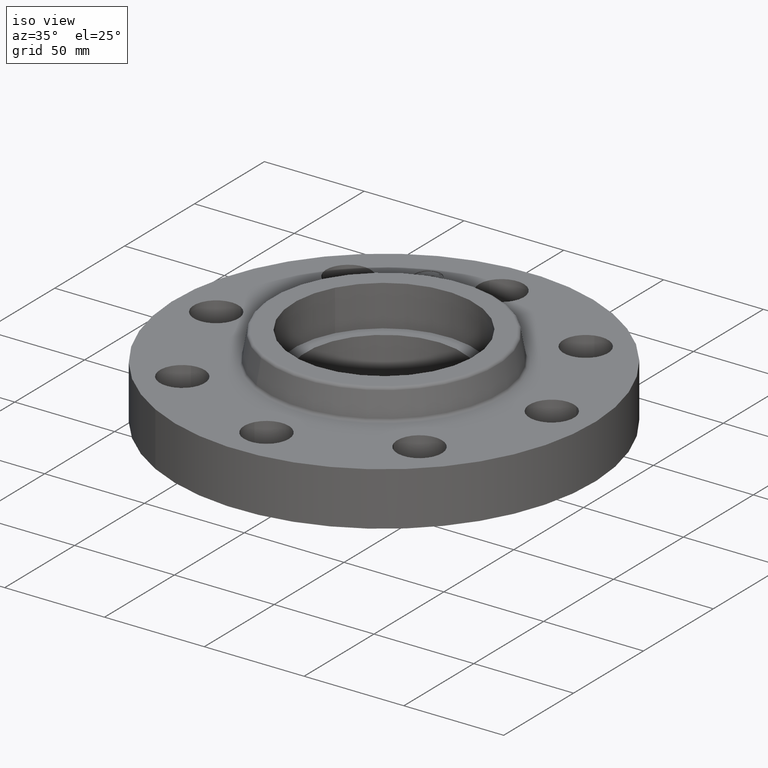
[diagram: clean part render]
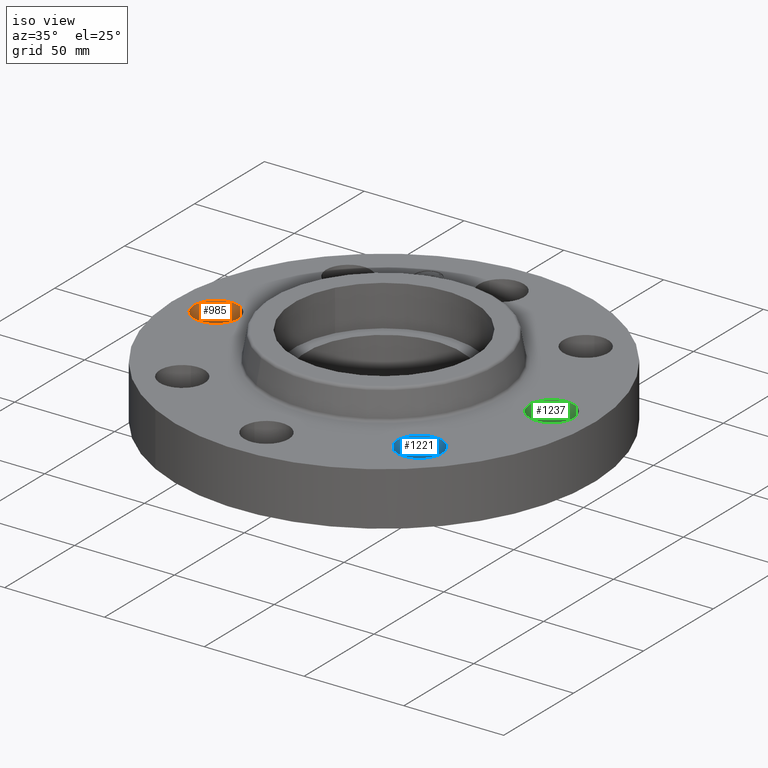
[diagram: same view with three faces highlighted in distinct colors, each labeled with its STEP entity id]
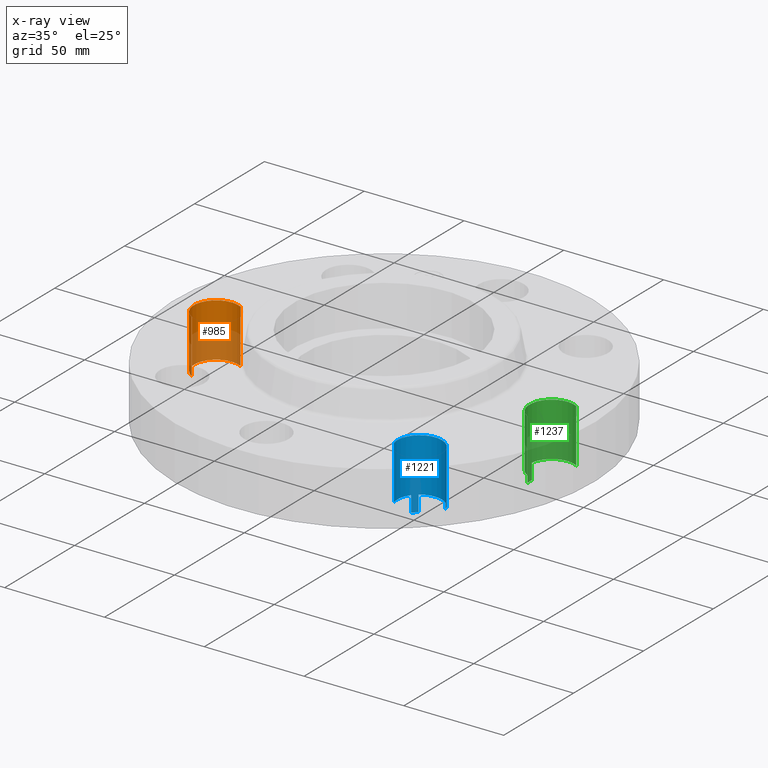
[diagram: x-ray of the same camera — body ghosted, the three highlighted faces saturated]
A machine part, iso view with three faces highlighted in distinct colors.
The next image is the same camera in x-ray (body ghosted, the three faces saturated) — at least one of them is partly hidden behind the body in this view.
Their STEP definitions:

[orange] entity #985 — the highlighted cylindrical surface (edge-blend (fillet) strip) has radius 11.176 mm, axis along (0, 0, -1).
#715=AXIS2_PLACEMENT_3D('Circle Axis2P3D',#713,#714,$) ;
#958=AXIS2_PLACEMENT_3D('Cylinder Axis2P3D',#955,#956,#957) ;
#976=AXIS2_PLACEMENT_3D('Circle Axis2P3D',#974,#975,$) ;
#710=CARTESIAN_POINT('Vertex',(-3.09905276303,0.386136327233,-1.39870617276E-016)) ;
#713=CARTESIAN_POINT('Axis2P3D Location',(-3.31000000001,-5.59482469102E-016,0.)) ;
#717=CARTESIAN_POINT('Vertex',(-3.520947237,-0.386136327233,0.)) ;
#955=CARTESIAN_POINT('Axis2P3D Location',(-3.31000000001,-6.08037135779E-016,1.05606299213)) ;
#960=CARTESIAN_POINT('Line Origine',(-3.520947237,-0.386136327233,0.373500000001)) ;
#964=CARTESIAN_POINT('Vertex',(-3.520947237,-0.386136327233,1.06)) ;
#967=CARTESIAN_POINT('Line Origine',(-3.09905276303,0.386136327233,0.373500000001)) ;
#971=CARTESIAN_POINT('Vertex',(-3.09905276303,0.386136327233,1.06)) ;
#974=CARTESIAN_POINT('Axis2P3D Location',(-3.31000000001,-6.08037135779E-016,1.06)) ;
#714=DIRECTION('Axis2P3D Direction',(0.,0.,-0.0393700787402)) ;
#956=DIRECTION('Axis2P3D Direction',(0.,0.,-0.0393700787402)) ;
#957=DIRECTION('Axis2P3D XDirection',(0.0188750212049,0.0345504945626,0.)) ;
#961=DIRECTION('Vector Direction',(0.,0.,-0.0393700787402)) ;
#968=DIRECTION('Vector Direction',(0.,0.,-0.0393700787402)) ;
#975=DIRECTION('Axis2P3D Direction',(0.,0.,-0.0393700787402)) ;
#962=VECTOR('Line Direction',#961,0.0393700787402) ;
#969=VECTOR('Line Direction',#968,0.0393700787402) ;
#980=ORIENTED_EDGE('',*,*,#966,.F.) ;
#981=ORIENTED_EDGE('',*,*,#719,.T.) ;
#982=ORIENTED_EDGE('',*,*,#973,.T.) ;
#983=ORIENTED_EDGE('',*,*,#978,.F.) ;
#985=ADVANCED_FACE('PartBody',(#984),#959,.F.) ;
#716=CIRCLE('generated circle',#715,0.440000000002) ;
#977=CIRCLE('generated circle',#976,0.440000000002) ;
#959=CYLINDRICAL_SURFACE('generated cylinder',#958,0.440000000002) ;
#719=EDGE_CURVE('',#718,#711,#716,.T.) ;
#966=EDGE_CURVE('',#718,#965,#963,.F.) ;
#973=EDGE_CURVE('',#711,#972,#970,.F.) ;
#978=EDGE_CURVE('',#965,#972,#977,.T.) ;
#979=EDGE_LOOP('',(#980,#981,#982,#983)) ;
#984=FACE_OUTER_BOUND('',#979,.T.) ;
#963=LINE('Line',#960,#962) ;
#970=LINE('Line',#967,#969) ;
#711=VERTEX_POINT('',#710) ;
#718=VERTEX_POINT('',#717) ;
#965=VERTEX_POINT('',#964) ;
#972=VERTEX_POINT('',#971) ;

[blue] entity #1221 — the highlighted cylindrical surface (edge-blend (fillet) strip) has radius 11.176 mm, axis along (-0, 0, -1).
#216=AXIS2_PLACEMENT_3D('Circle Axis2P3D',#214,#215,$) ;
#765=AXIS2_PLACEMENT_3D('Circle Axis2P3D',#763,#764,$) ;
#779=AXIS2_PLACEMENT_3D('Circle Axis2P3D',#777,#778,$) ;
#865=AXIS2_PLACEMENT_3D('Cylinder Axis2P3D',#862,#863,#864) ;
#1208=AXIS2_PLACEMENT_3D('Circle Axis2P3D',#1206,#1207,$) ;
#211=CARTESIAN_POINT('Vertex',(2.07605138692,-1.98887798493,-0.313000000001)) ;
#214=CARTESIAN_POINT('Axis2P3D Location',(2.34052344574,-2.34052344574,-0.313000000001)) ;
#218=CARTESIAN_POINT('Vertex',(1.98887798493,-2.07605138692,-0.313000000001)) ;
#387=CARTESIAN_POINT('Line Origine',(2.07605138692,-1.98887798493,-0.156500000001)) ;
#391=CARTESIAN_POINT('Vertex',(2.07605138692,-1.98887798493,2.79741234551E-016)) ;
#413=CARTESIAN_POINT('Line Origine',(1.98887798493,-2.07605138692,-0.156500000001)) ;
#417=CARTESIAN_POINT('Vertex',(1.98887798493,-2.07605138692,2.79741234551E-016)) ;
#763=CARTESIAN_POINT('Axis2P3D Location',(2.34052344574,-2.34052344574,0.)) ;
#767=CARTESIAN_POINT('Vertex',(1.91832160854,-2.46440083944,-1.39870617276E-016)) ;
#774=CARTESIAN_POINT('Vertex',(2.76272528293,-2.21664605203,0.)) ;
#777=CARTESIAN_POINT('Axis2P3D Location',(2.34052344574,-2.34052344574,0.)) ;
#862=CARTESIAN_POINT('Axis2P3D Location',(2.34052344574,-2.34052344574,1.05606299213)) ;
#867=CARTESIAN_POINT('Line Origine',(2.76272528293,-2.21664605203,0.373500000001)) ;
#871=CARTESIAN_POINT('Vertex',(2.76272528293,-2.21664605203,1.06)) ;
#874=CARTESIAN_POINT('Line Origine',(1.91832160854,-2.46440083944,0.373500000001)) ;
#878=CARTESIAN_POINT('Vertex',(1.91832160854,-2.46440083944,1.06)) ;
#1206=CARTESIAN_POINT('Axis2P3D Location',(2.34052344574,-2.34052344574,1.06)) ;
#215=DIRECTION('Axis2P3D Direction',(0.,0.,-0.0393700787402)) ;
#388=DIRECTION('Vector Direction',(0.,0.,-0.0393700787402)) ;
#414=DIRECTION('Vector Direction',(0.,0.,-0.0393700787402)) ;
#764=DIRECTION('Axis2P3D Direction',(0.,0.,-0.0393700787402)) ;
#778=DIRECTION('Axis2P3D Direction',(0.,0.,-0.0393700787402)) ;
#863=DIRECTION('Axis2P3D Direction',(-0.,0.,-0.0393700787402)) ;
#864=DIRECTION('Axis2P3D XDirection',(-0.0377775444876,-0.0110842335096,0.)) ;
#868=DIRECTION('Vector Direction',(0.,0.,-0.0393700787402)) ;
#875=DIRECTION('Vector Direction',(0.,0.,-0.0393700787402)) ;
#1207=DIRECTION('Axis2P3D Direction',(-0.,0.,-0.0393700787402)) ;
#389=VECTOR('Line Direction',#388,0.0393700787402) ;
#415=VECTOR('Line Direction',#414,0.0393700787402) ;
#869=VECTOR('Line Direction',#868,0.0393700787402) ;
#876=VECTOR('Line Direction',#875,0.0393700787402) ;
#1212=ORIENTED_EDGE('',*,*,#880,.F.) ;
#1213=ORIENTED_EDGE('',*,*,#769,.T.) ;
#1214=ORIENTED_EDGE('',*,*,#419,.T.) ;
#1215=ORIENTED_EDGE('',*,*,#220,.T.) ;
#1216=ORIENTED_EDGE('',*,*,#393,.F.) ;
#1217=ORIENTED_EDGE('',*,*,#781,.T.) ;
#1218=ORIENTED_EDGE('',*,*,#873,.T.) ;
#1219=ORIENTED_EDGE('',*,*,#1210,.F.) ;
#1221=ADVANCED_FACE('PartBody',(#1220),#866,.F.) ;
#217=CIRCLE('generated circle',#216,0.440000000002) ;
#766=CIRCLE('generated circle',#765,0.440000000002) ;
#780=CIRCLE('generated circle',#779,0.440000000002) ;
#1209=CIRCLE('generated circle',#1208,0.440000000002) ;
#866=CYLINDRICAL_SURFACE('generated cylinder',#865,0.440000000002) ;
#220=EDGE_CURVE('',#219,#212,#217,.T.) ;
#393=EDGE_CURVE('',#392,#212,#390,.T.) ;
#419=EDGE_CURVE('',#418,#219,#416,.T.) ;
#769=EDGE_CURVE('',#768,#418,#766,.T.) ;
#781=EDGE_CURVE('',#392,#775,#780,.T.) ;
#873=EDGE_CURVE('',#775,#872,#870,.F.) ;
#880=EDGE_CURVE('',#768,#879,#877,.F.) ;
#1210=EDGE_CURVE('',#879,#872,#1209,.T.) ;
#1211=EDGE_LOOP('',(#1212,#1213,#1214,#1215,#1216,#1217,#1218,#1219)) ;
#1220=FACE_OUTER_BOUND('',#1211,.T.) ;
#390=LINE('Line',#387,#389) ;
#416=LINE('Line',#413,#415) ;
#870=LINE('Line',#867,#869) ;
#877=LINE('Line',#874,#876) ;
#212=VERTEX_POINT('',#211) ;
#219=VERTEX_POINT('',#218) ;
#392=VERTEX_POINT('',#391) ;
#418=VERTEX_POINT('',#417) ;
#768=VERTEX_POINT('',#767) ;
#775=VERTEX_POINT('',#774) ;
#872=VERTEX_POINT('',#871) ;
#879=VERTEX_POINT('',#878) ;

[green] entity #1237 — the highlighted cylindrical surface (edge-blend (fillet) strip) has radius 11.176 mm, axis along (0, -0, -1).
#202=AXIS2_PLACEMENT_3D('Circle Axis2P3D',#200,#201,$) ;
#632=AXIS2_PLACEMENT_3D('Circle Axis2P3D',#630,#631,$) ;
#646=AXIS2_PLACEMENT_3D('Circle Axis2P3D',#644,#645,$) ;
#1082=AXIS2_PLACEMENT_3D('Cylinder Axis2P3D',#1079,#1080,#1081) ;
#1224=AXIS2_PLACEMENT_3D('Circle Axis2P3D',#1222,#1223,$) ;
#197=CARTESIAN_POINT('Vertex',(2.87433912388,0.0616409036851,-0.313000000001)) ;
#200=CARTESIAN_POINT('Axis2P3D Location',(3.31000000001,5.59482469102E-016,-0.313000000001)) ;
#204=CARTESIAN_POINT('Vertex',(2.87433912388,-0.0616409036851,-0.313000000001)) ;
#367=CARTESIAN_POINT('Vertex',(2.87433912388,0.0616409036851,2.79741234551E-016)) ;
#370=CARTESIAN_POINT('Line Origine',(2.87433912388,0.0616409036851,-0.156500000001)) ;
#394=CARTESIAN_POINT('Line Origine',(2.87433912388,-0.0616409036851,-0.156500000001)) ;
#398=CARTESIAN_POINT('Vertex',(2.87433912388,-0.0616409036851,2.79741234551E-016)) ;
#630=CARTESIAN_POINT('Axis2P3D Location',(3.31000000001,0.,0.)) ;
#634=CARTESIAN_POINT('Vertex',(3.09905276303,-0.386136327233,-1.39870617276E-016)) ;
#641=CARTESIAN_POINT('Vertex',(3.520947237,0.386136327233,0.)) ;
#644=CARTESIAN_POINT('Axis2P3D Location',(3.31000000001,0.,0.)) ;
#1079=CARTESIAN_POINT('Axis2P3D Location',(3.31000000001,2.0267904526E-016,1.05606299213)) ;
#1084=CARTESIAN_POINT('Line Origine',(3.520947237,0.386136327233,0.373500000001)) ;
#1088=CARTESIAN_POINT('Vertex',(3.520947237,0.386136327233,1.06)) ;
#1091=CARTESIAN_POINT('Line Origine',(3.09905276303,-0.386136327233,0.373500000001)) ;
#1095=CARTESIAN_POINT('Vertex',(3.09905276303,-0.386136327233,1.06)) ;
#1222=CARTESIAN_POINT('Axis2P3D Location',(3.31000000001,2.0267904526E-016,1.06)) ;
#201=DIRECTION('Axis2P3D Direction',(0.,0.,-0.0393700787402)) ;
#371=DIRECTION('Vector Direction',(0.,0.,-0.0393700787402)) ;
#395=DIRECTION('Vector Direction',(0.,0.,-0.0393700787402)) ;
#631=DIRECTION('Axis2P3D Direction',(0.,0.,-0.0393700787402)) ;
#645=DIRECTION('Axis2P3D Direction',(0.,0.,-0.0393700787402)) ;
#1080=DIRECTION('Axis2P3D Direction',(0.,-0.,-0.0393700787402)) ;
#1081=DIRECTION('Axis2P3D XDirection',(-0.0188750212049,-0.0345504945626,0.)) ;
#1085=DIRECTION('Vector Direction',(0.,0.,-0.0393700787402)) ;
#1092=DIRECTION('Vector Direction',(0.,0.,-0.0393700787402)) ;
#1223=DIRECTION('Axis2P3D Direction',(0.,-0.,-0.0393700787402)) ;
#372=VECTOR('Line Direction',#371,0.0393700787402) ;
#396=VECTOR('Line Direction',#395,0.0393700787402) ;
#1086=VECTOR('Line Direction',#1085,0.0393700787402) ;
#1093=VECTOR('Line Direction',#1092,0.0393700787402) ;
#1228=ORIENTED_EDGE('',*,*,#1097,.F.) ;
#1229=ORIENTED_EDGE('',*,*,#636,.T.) ;
#1230=ORIENTED_EDGE('',*,*,#400,.T.) ;
#1231=ORIENTED_EDGE('',*,*,#206,.T.) ;
#1232=ORIENTED_EDGE('',*,*,#374,.F.) ;
#1233=ORIENTED_EDGE('',*,*,#648,.T.) ;
#1234=ORIENTED_EDGE('',*,*,#1090,.T.) ;
#1235=ORIENTED_EDGE('',*,*,#1226,.F.) ;
#1237=ADVANCED_FACE('PartBody',(#1236),#1083,.F.) ;
#203=CIRCLE('generated circle',#202,0.440000000002) ;
#633=CIRCLE('generated circle',#632,0.440000000002) ;
#647=CIRCLE('generated circle',#646,0.440000000002) ;
#1225=CIRCLE('generated circle',#1224,0.440000000002) ;
#1083=CYLINDRICAL_SURFACE('generated cylinder',#1082,0.440000000002) ;
#206=EDGE_CURVE('',#205,#198,#203,.T.) ;
#374=EDGE_CURVE('',#368,#198,#373,.T.) ;
#400=EDGE_CURVE('',#399,#205,#397,.T.) ;
#636=EDGE_CURVE('',#635,#399,#633,.T.) ;
#648=EDGE_CURVE('',#368,#642,#647,.T.) ;
#1090=EDGE_CURVE('',#642,#1089,#1087,.F.) ;
#1097=EDGE_CURVE('',#635,#1096,#1094,.F.) ;
#1226=EDGE_CURVE('',#1096,#1089,#1225,.T.) ;
#1227=EDGE_LOOP('',(#1228,#1229,#1230,#1231,#1232,#1233,#1234,#1235)) ;
#1236=FACE_OUTER_BOUND('',#1227,.T.) ;
#373=LINE('Line',#370,#372) ;
#397=LINE('Line',#394,#396) ;
#1087=LINE('Line',#1084,#1086) ;
#1094=LINE('Line',#1091,#1093) ;
#198=VERTEX_POINT('',#197) ;
#205=VERTEX_POINT('',#204) ;
#368=VERTEX_POINT('',#367) ;
#399=VERTEX_POINT('',#398) ;
#635=VERTEX_POINT('',#634) ;
#642=VERTEX_POINT('',#641) ;
#1089=VERTEX_POINT('',#1088) ;
#1096=VERTEX_POINT('',#1095) ;